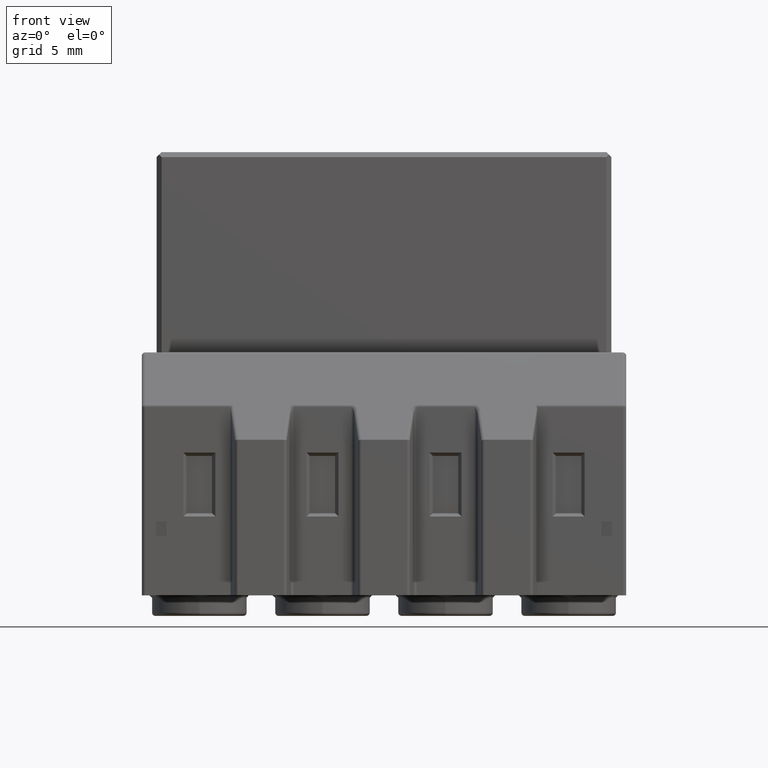
[diagram: clean part render]
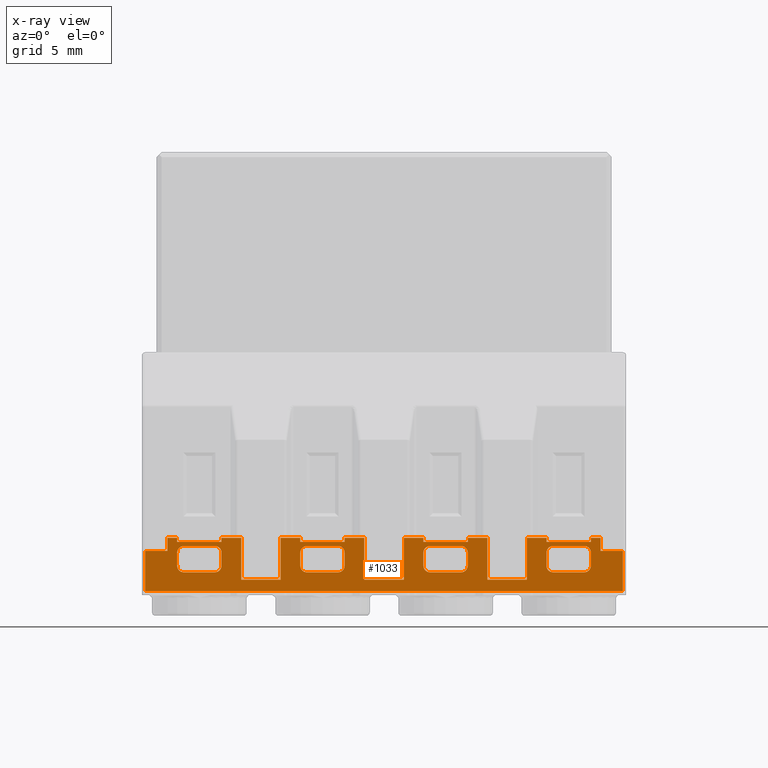
[diagram: x-ray — body ghosted, one internal face saturated and labeled with its STEP entity id]
A machine part, front view, then the same camera in x-ray: the body is ghosted and one INTERNAL B-rep face — a face not visible from any outside direction — is saturated and labeled: STEP entity #1033.
In plain terms, the highlighted planar face has unit normal (0, 1, 0).
Its self-contained STEP definition (entity closure, byte-faithful):
#1033=ADVANCED_FACE('',(#2206,#2207,#2208,#2209,#2210),#1711,.F.);
#1711=PLANE('',#12964);
#2206=FACE_BOUND('',#2252,.T.);
#2207=FACE_BOUND('',#2253,.T.);
#2208=FACE_BOUND('',#2254,.T.);
#2209=FACE_BOUND('',#2255,.T.);
#2210=FACE_BOUND('',#2256,.T.);
#2252=EDGE_LOOP('',(#5974,#5975,#5976,#5977,#5978,#5979,#5980,#5981));
#2253=EDGE_LOOP('',(#5982,#5983,#5984,#5985,#5986,#5987,#5988,#5989));
#2254=EDGE_LOOP('',(#5990,#5991,#5992,#5993,#5994,#5995,#5996,#5997));
#2255=EDGE_LOOP('',(#5998,#5999,#6000,#6001,#6002,#6003,#6004,#6005));
#2256=EDGE_LOOP('',(#6006,#6007,#6008,#6009,#6010,#6011,#6012,#6013,#6014,
#6015,#6016,#6017,#6018,#6019,#6020,#6021,#6022,#6023,#6024,#6025,#6026,
#6027,#6028,#6029,#6030,#6031,#6032,#6033,#6034,#6035,#6036,#6037,#6038,
#6039,#6040,#6041));
#2960=LINE('',#17395,#4467);
#2961=LINE('',#17399,#4468);
#2962=LINE('',#17403,#4469);
#2963=LINE('',#17407,#4470);
#2964=LINE('',#17411,#4471);
#2965=LINE('',#17415,#4472);
#2966=LINE('',#17419,#4473);
#2967=LINE('',#17423,#4474);
#2968=LINE('',#17427,#4475);
#2969=LINE('',#17431,#4476);
#2970=LINE('',#17435,#4477);
#2971=LINE('',#17439,#4478);
#2972=LINE('',#17443,#4479);
#2973=LINE('',#17447,#4480);
#2974=LINE('',#17451,#4481);
#2975=LINE('',#17455,#4482);
#2976=LINE('',#17456,#4483);
#2977=LINE('',#17459,#4484);
#2978=LINE('',#17461,#4485);
#2979=LINE('',#17463,#4486);
#2980=LINE('',#17465,#4487);
#2981=LINE('',#17467,#4488);
#2982=LINE('',#17469,#4489);
#2983=LINE('',#17471,#4490);
#2984=LINE('',#17473,#4491);
#2985=LINE('',#17475,#4492);
#2986=LINE('',#17477,#4493);
#2987=LINE('',#17479,#4494);
#2988=LINE('',#17481,#4495);
#2989=LINE('',#17483,#4496);
#2990=LINE('',#17485,#4497);
#2991=LINE('',#17487,#4498);
#2992=LINE('',#17489,#4499);
#2993=LINE('',#17491,#4500);
#2994=LINE('',#17493,#4501);
#2995=LINE('',#17495,#4502);
#2996=LINE('',#17497,#4503);
#2997=LINE('',#17499,#4504);
#2998=LINE('',#17501,#4505);
#2999=LINE('',#17503,#4506);
#3000=LINE('',#17505,#4507);
#3001=LINE('',#17507,#4508);
#3002=LINE('',#17509,#4509);
#3003=LINE('',#17511,#4510);
#3004=LINE('',#17513,#4511);
#3005=LINE('',#17515,#4512);
#3006=LINE('',#17517,#4513);
#3007=LINE('',#17519,#4514);
#3008=LINE('',#17521,#4515);
#3009=LINE('',#17523,#4516);
#3010=LINE('',#17525,#4517);
#3011=LINE('',#17527,#4518);
#4467=VECTOR('',#13930,1.);
#4468=VECTOR('',#13933,1.);
#4469=VECTOR('',#13936,1.);
#4470=VECTOR('',#13939,1.);
#4471=VECTOR('',#13942,1.);
#4472=VECTOR('',#13945,1.);
#4473=VECTOR('',#13948,1.);
#4474=VECTOR('',#13951,1.);
#4475=VECTOR('',#13954,1.);
#4476=VECTOR('',#13957,1.);
#4477=VECTOR('',#13960,1.);
#4478=VECTOR('',#13963,1.);
#4479=VECTOR('',#13966,1.);
#4480=VECTOR('',#13969,1.);
#4481=VECTOR('',#13972,1.);
#4482=VECTOR('',#13975,1.);
#4483=VECTOR('',#13976,1.);
#4484=VECTOR('',#13977,1.);
#4485=VECTOR('',#13978,1.);
#4486=VECTOR('',#13979,1.);
#4487=VECTOR('',#13980,1.);
#4488=VECTOR('',#13981,1.);
#4489=VECTOR('',#13982,1.);
#4490=VECTOR('',#13983,1.);
#4491=VECTOR('',#13984,1.);
#4492=VECTOR('',#13985,1.);
#4493=VECTOR('',#13986,1.);
#4494=VECTOR('',#13987,1.);
#4495=VECTOR('',#13988,1.);
#4496=VECTOR('',#13989,1.);
#4497=VECTOR('',#13990,1.);
#4498=VECTOR('',#13991,1.);
#4499=VECTOR('',#13992,1.);
#4500=VECTOR('',#13993,1.);
#4501=VECTOR('',#13994,1.);
#4502=VECTOR('',#13995,1.);
#4503=VECTOR('',#13996,1.);
#4504=VECTOR('',#13997,1.);
#4505=VECTOR('',#13998,1.);
#4506=VECTOR('',#13999,1.);
#4507=VECTOR('',#14000,1.);
#4508=VECTOR('',#14001,1.);
#4509=VECTOR('',#14002,1.);
#4510=VECTOR('',#14003,1.);
#4511=VECTOR('',#14004,1.);
#4512=VECTOR('',#14005,1.);
#4513=VECTOR('',#14006,1.);
#4514=VECTOR('',#14007,1.);
#4515=VECTOR('',#14008,1.);
#4516=VECTOR('',#14009,1.);
#4517=VECTOR('',#14010,1.);
#4518=VECTOR('',#14011,1.);
#5974=ORIENTED_EDGE('',*,*,#10849,.F.);
#5975=ORIENTED_EDGE('',*,*,#10850,.F.);
#5976=ORIENTED_EDGE('',*,*,#10851,.F.);
#5977=ORIENTED_EDGE('',*,*,#10852,.F.);
#5978=ORIENTED_EDGE('',*,*,#10853,.F.);
#5979=ORIENTED_EDGE('',*,*,#10854,.F.);
#5980=ORIENTED_EDGE('',*,*,#10855,.F.);
#5981=ORIENTED_EDGE('',*,*,#10856,.F.);
#5982=ORIENTED_EDGE('',*,*,#10857,.F.);
#5983=ORIENTED_EDGE('',*,*,#10858,.F.);
#5984=ORIENTED_EDGE('',*,*,#10859,.F.);
#5985=ORIENTED_EDGE('',*,*,#10860,.F.);
#5986=ORIENTED_EDGE('',*,*,#10861,.F.);
#5987=ORIENTED_EDGE('',*,*,#10862,.F.);
#5988=ORIENTED_EDGE('',*,*,#10863,.F.);
#5989=ORIENTED_EDGE('',*,*,#10864,.F.);
#5990=ORIENTED_EDGE('',*,*,#10865,.F.);
#5991=ORIENTED_EDGE('',*,*,#10866,.F.);
#5992=ORIENTED_EDGE('',*,*,#10867,.F.);
#5993=ORIENTED_EDGE('',*,*,#10868,.F.);
#5994=ORIENTED_EDGE('',*,*,#10869,.F.);
#5995=ORIENTED_EDGE('',*,*,#10870,.F.);
#5996=ORIENTED_EDGE('',*,*,#10871,.F.);
#5997=ORIENTED_EDGE('',*,*,#10872,.F.);
#5998=ORIENTED_EDGE('',*,*,#10873,.F.);
#5999=ORIENTED_EDGE('',*,*,#10874,.F.);
#6000=ORIENTED_EDGE('',*,*,#10875,.F.);
#6001=ORIENTED_EDGE('',*,*,#10876,.F.);
#6002=ORIENTED_EDGE('',*,*,#10877,.F.);
#6003=ORIENTED_EDGE('',*,*,#10878,.F.);
#6004=ORIENTED_EDGE('',*,*,#10879,.F.);
#6005=ORIENTED_EDGE('',*,*,#10880,.F.);
#6006=ORIENTED_EDGE('',*,*,#10881,.T.);
#6007=ORIENTED_EDGE('',*,*,#10882,.T.);
#6008=ORIENTED_EDGE('',*,*,#10883,.T.);
#6009=ORIENTED_EDGE('',*,*,#10884,.T.);
#6010=ORIENTED_EDGE('',*,*,#10885,.F.);
#6011=ORIENTED_EDGE('',*,*,#10886,.T.);
#6012=ORIENTED_EDGE('',*,*,#10887,.T.);
#6013=ORIENTED_EDGE('',*,*,#10888,.F.);
#6014=ORIENTED_EDGE('',*,*,#10889,.T.);
#6015=ORIENTED_EDGE('',*,*,#10890,.T.);
#6016=ORIENTED_EDGE('',*,*,#10891,.T.);
#6017=ORIENTED_EDGE('',*,*,#10892,.F.);
#6018=ORIENTED_EDGE('',*,*,#10893,.T.);
#6019=ORIENTED_EDGE('',*,*,#10894,.T.);
#6020=ORIENTED_EDGE('',*,*,#10895,.T.);
#6021=ORIENTED_EDGE('',*,*,#10896,.T.);
#6022=ORIENTED_EDGE('',*,*,#10897,.F.);
#6023=ORIENTED_EDGE('',*,*,#10898,.T.);
#6024=ORIENTED_EDGE('',*,*,#10899,.T.);
#6025=ORIENTED_EDGE('',*,*,#10900,.T.);
#6026=ORIENTED_EDGE('',*,*,#10901,.T.);
#6027=ORIENTED_EDGE('',*,*,#10902,.T.);
#6028=ORIENTED_EDGE('',*,*,#10903,.T.);
#6029=ORIENTED_EDGE('',*,*,#10904,.T.);
#6030=ORIENTED_EDGE('',*,*,#10905,.F.);
#6031=ORIENTED_EDGE('',*,*,#10906,.T.);
#6032=ORIENTED_EDGE('',*,*,#10907,.T.);
#6033=ORIENTED_EDGE('',*,*,#10908,.F.);
#6034=ORIENTED_EDGE('',*,*,#10909,.T.);
#6035=ORIENTED_EDGE('',*,*,#10910,.T.);
#6036=ORIENTED_EDGE('',*,*,#10911,.T.);
#6037=ORIENTED_EDGE('',*,*,#10912,.T.);
#6038=ORIENTED_EDGE('',*,*,#10913,.F.);
#6039=ORIENTED_EDGE('',*,*,#10914,.T.);
#6040=ORIENTED_EDGE('',*,*,#10915,.T.);
#6041=ORIENTED_EDGE('',*,*,#10916,.T.);
#9656=VERTEX_POINT('',#17393);
#9657=VERTEX_POINT('',#17394);
#9658=VERTEX_POINT('',#17396);
#9659=VERTEX_POINT('',#17398);
#9660=VERTEX_POINT('',#17400);
#9661=VERTEX_POINT('',#17402);
#9662=VERTEX_POINT('',#17404);
#9663=VERTEX_POINT('',#17406);
#9664=VERTEX_POINT('',#17409);
#9665=VERTEX_POINT('',#17410);
#9666=VERTEX_POINT('',#17412);
#9667=VERTEX_POINT('',#17414);
#9668=VERTEX_POINT('',#17416);
#9669=VERTEX_POINT('',#17418);
#9670=VERTEX_POINT('',#17420);
#9671=VERTEX_POINT('',#17422);
#9672=VERTEX_POINT('',#17425);
#9673=VERTEX_POINT('',#17426);
#9674=VERTEX_POINT('',#17428);
#9675=VERTEX_POINT('',#17430);
#9676=VERTEX_POINT('',#17432);
#9677=VERTEX_POINT('',#17434);
#9678=VERTEX_POINT('',#17436);
#9679=VERTEX_POINT('',#17438);
#9680=VERTEX_POINT('',#17441);
#9681=VERTEX_POINT('',#17442);
#9682=VERTEX_POINT('',#17444);
#9683=VERTEX_POINT('',#17446);
#9684=VERTEX_POINT('',#17448);
#9685=VERTEX_POINT('',#17450);
#9686=VERTEX_POINT('',#17452);
#9687=VERTEX_POINT('',#17454);
#9688=VERTEX_POINT('',#17457);
#9689=VERTEX_POINT('',#17458);
#9690=VERTEX_POINT('',#17460);
#9691=VERTEX_POINT('',#17462);
#9692=VERTEX_POINT('',#17464);
#9693=VERTEX_POINT('',#17466);
#9694=VERTEX_POINT('',#17468);
#9695=VERTEX_POINT('',#17470);
#9696=VERTEX_POINT('',#17472);
#9697=VERTEX_POINT('',#17474);
#9698=VERTEX_POINT('',#17476);
#9699=VERTEX_POINT('',#17478);
#9700=VERTEX_POINT('',#17480);
#9701=VERTEX_POINT('',#17482);
#9702=VERTEX_POINT('',#17484);
#9703=VERTEX_POINT('',#17486);
#9704=VERTEX_POINT('',#17488);
#9705=VERTEX_POINT('',#17490);
#9706=VERTEX_POINT('',#17492);
#9707=VERTEX_POINT('',#17494);
#9708=VERTEX_POINT('',#17496);
#9709=VERTEX_POINT('',#17498);
#9710=VERTEX_POINT('',#17500);
#9711=VERTEX_POINT('',#17502);
#9712=VERTEX_POINT('',#17504);
#9713=VERTEX_POINT('',#17506);
#9714=VERTEX_POINT('',#17508);
#9715=VERTEX_POINT('',#17510);
#9716=VERTEX_POINT('',#17512);
#9717=VERTEX_POINT('',#17514);
#9718=VERTEX_POINT('',#17516);
#9719=VERTEX_POINT('',#17518);
#9720=VERTEX_POINT('',#17520);
#9721=VERTEX_POINT('',#17522);
#9722=VERTEX_POINT('',#17524);
#9723=VERTEX_POINT('',#17526);
#10849=EDGE_CURVE('',#9656,#9657,#12690,.T.);
#10850=EDGE_CURVE('',#9658,#9656,#2960,.T.);
#10851=EDGE_CURVE('',#9659,#9658,#12691,.T.);
#10852=EDGE_CURVE('',#9660,#9659,#2961,.T.);
#10853=EDGE_CURVE('',#9661,#9660,#12692,.T.);
#10854=EDGE_CURVE('',#9662,#9661,#2962,.T.);
#10855=EDGE_CURVE('',#9663,#9662,#12693,.T.);
#10856=EDGE_CURVE('',#9657,#9663,#2963,.T.);
#10857=EDGE_CURVE('',#9664,#9665,#12694,.T.);
#10858=EDGE_CURVE('',#9666,#9664,#2964,.T.);
#10859=EDGE_CURVE('',#9667,#9666,#12695,.T.);
#10860=EDGE_CURVE('',#9668,#9667,#2965,.T.);
#10861=EDGE_CURVE('',#9669,#9668,#12696,.T.);
#10862=EDGE_CURVE('',#9670,#9669,#2966,.T.);
#10863=EDGE_CURVE('',#9671,#9670,#12697,.T.);
#10864=EDGE_CURVE('',#9665,#9671,#2967,.T.);
#10865=EDGE_CURVE('',#9672,#9673,#12698,.T.);
#10866=EDGE_CURVE('',#9674,#9672,#2968,.T.);
#10867=EDGE_CURVE('',#9675,#9674,#12699,.T.);
#10868=EDGE_CURVE('',#9676,#9675,#2969,.T.);
#10869=EDGE_CURVE('',#9677,#9676,#12700,.T.);
#10870=EDGE_CURVE('',#9678,#9677,#2970,.T.);
#10871=EDGE_CURVE('',#9679,#9678,#12701,.T.);
#10872=EDGE_CURVE('',#9673,#9679,#2971,.T.);
#10873=EDGE_CURVE('',#9680,#9681,#12702,.T.);
#10874=EDGE_CURVE('',#9682,#9680,#2972,.T.);
#10875=EDGE_CURVE('',#9683,#9682,#12703,.T.);
#10876=EDGE_CURVE('',#9684,#9683,#2973,.T.);
#10877=EDGE_CURVE('',#9685,#9684,#12704,.T.);
#10878=EDGE_CURVE('',#9686,#9685,#2974,.T.);
#10879=EDGE_CURVE('',#9687,#9686,#12705,.T.);
#10880=EDGE_CURVE('',#9681,#9687,#2975,.T.);
#10881=EDGE_CURVE('',#9688,#9689,#2976,.T.);
#10882=EDGE_CURVE('',#9689,#9690,#2977,.T.);
#10883=EDGE_CURVE('',#9690,#9691,#2978,.T.);
#10884=EDGE_CURVE('',#9691,#9692,#2979,.T.);
#10885=EDGE_CURVE('',#9693,#9692,#2980,.T.);
#10886=EDGE_CURVE('',#9693,#9694,#2981,.T.);
#10887=EDGE_CURVE('',#9694,#9695,#2982,.T.);
#10888=EDGE_CURVE('',#9696,#9695,#2983,.T.);
#10889=EDGE_CURVE('',#9696,#9697,#2984,.T.);
#10890=EDGE_CURVE('',#9697,#9698,#2985,.T.);
#10891=EDGE_CURVE('',#9698,#9699,#2986,.T.);
#10892=EDGE_CURVE('',#9700,#9699,#2987,.T.);
#10893=EDGE_CURVE('',#9700,#9701,#2988,.T.);
#10894=EDGE_CURVE('',#9701,#9702,#2989,.T.);
#10895=EDGE_CURVE('',#9702,#9703,#2990,.T.);
#10896=EDGE_CURVE('',#9703,#9704,#2991,.T.);
#10897=EDGE_CURVE('',#9705,#9704,#2992,.T.);
#10898=EDGE_CURVE('',#9705,#9706,#2993,.T.);
#10899=EDGE_CURVE('',#9706,#9707,#2994,.T.);
#10900=EDGE_CURVE('',#9707,#9708,#2995,.T.);
#10901=EDGE_CURVE('',#9708,#9709,#2996,.T.);
#10902=EDGE_CURVE('',#9709,#9710,#2997,.T.);
#10903=EDGE_CURVE('',#9710,#9711,#2998,.T.);
#10904=EDGE_CURVE('',#9711,#9712,#2999,.T.);
#10905=EDGE_CURVE('',#9713,#9712,#3000,.T.);
#10906=EDGE_CURVE('',#9713,#9714,#3001,.T.);
#10907=EDGE_CURVE('',#9714,#9715,#3002,.T.);
#10908=EDGE_CURVE('',#9716,#9715,#3003,.T.);
#10909=EDGE_CURVE('',#9716,#9717,#3004,.T.);
#10910=EDGE_CURVE('',#9717,#9718,#3005,.T.);
#10911=EDGE_CURVE('',#9718,#9719,#3006,.T.);
#10912=EDGE_CURVE('',#9719,#9720,#3007,.T.);
#10913=EDGE_CURVE('',#9721,#9720,#3008,.T.);
#10914=EDGE_CURVE('',#9721,#9722,#3009,.T.);
#10915=EDGE_CURVE('',#9722,#9723,#3010,.T.);
#10916=EDGE_CURVE('',#9723,#9688,#3011,.T.);
#12690=CIRCLE('',#12948,0.4);
#12691=CIRCLE('',#12949,0.4);
#12692=CIRCLE('',#12950,0.4);
#12693=CIRCLE('',#12951,0.4);
#12694=CIRCLE('',#12952,0.4);
#12695=CIRCLE('',#12953,0.4);
#12696=CIRCLE('',#12954,0.4);
#12697=CIRCLE('',#12955,0.4);
#12698=CIRCLE('',#12956,0.4);
#12699=CIRCLE('',#12957,0.4);
#12700=CIRCLE('',#12958,0.4);
#12701=CIRCLE('',#12959,0.4);
#12702=CIRCLE('',#12960,0.4);
#12703=CIRCLE('',#12961,0.4);
#12704=CIRCLE('',#12962,0.4);
#12705=CIRCLE('',#12963,0.4);
#12948=AXIS2_PLACEMENT_3D('',#17392,#13928,#13929);
#12949=AXIS2_PLACEMENT_3D('',#17397,#13931,#13932);
#12950=AXIS2_PLACEMENT_3D('',#17401,#13934,#13935);
#12951=AXIS2_PLACEMENT_3D('',#17405,#13937,#13938);
#12952=AXIS2_PLACEMENT_3D('',#17408,#13940,#13941);
#12953=AXIS2_PLACEMENT_3D('',#17413,#13943,#13944);
#12954=AXIS2_PLACEMENT_3D('',#17417,#13946,#13947);
#12955=AXIS2_PLACEMENT_3D('',#17421,#13949,#13950);
#12956=AXIS2_PLACEMENT_3D('',#17424,#13952,#13953);
#12957=AXIS2_PLACEMENT_3D('',#17429,#13955,#13956);
#12958=AXIS2_PLACEMENT_3D('',#17433,#13958,#13959);
#12959=AXIS2_PLACEMENT_3D('',#17437,#13961,#13962);
#12960=AXIS2_PLACEMENT_3D('',#17440,#13964,#13965);
#12961=AXIS2_PLACEMENT_3D('',#17445,#13967,#13968);
#12962=AXIS2_PLACEMENT_3D('',#17449,#13970,#13971);
#12963=AXIS2_PLACEMENT_3D('',#17453,#13973,#13974);
#12964=AXIS2_PLACEMENT_3D('',#17528,#14012,#14013);
#13928=DIRECTION('',(0.,-1.,0.));
#13929=DIRECTION('',(1.,0.,0.));
#13930=DIRECTION('',(-8.744116541102E-012,0.,1.));
#13931=DIRECTION('',(0.,-1.,0.));
#13932=DIRECTION('',(0.,0.,-1.));
#13933=DIRECTION('',(1.,0.,3.68173328067E-012));
#13934=DIRECTION('',(0.,-1.,0.));
#13935=DIRECTION('',(-1.,0.,0.));
#13936=DIRECTION('',(8.746336987151E-012,0.,-1.));
#13937=DIRECTION('',(0.,-1.,0.));
#13938=DIRECTION('',(0.,0.,1.));
#13939=DIRECTION('',(-1.,0.,-3.685472979279E-012));
#13940=DIRECTION('',(0.,-1.,0.));
#13941=DIRECTION('',(1.,0.,0.));
#13942=DIRECTION('',(-8.7485574332E-012,0.,1.));
#13943=DIRECTION('',(0.,-1.,0.));
#13944=DIRECTION('',(3.90312782094782E-014,0.,-1.));
#13945=DIRECTION('',(1.,0.,3.679863431366E-012));
#13946=DIRECTION('',(0.,-1.,0.));
#13947=DIRECTION('',(-0.999999999999998,0.,0.));
#13948=DIRECTION('',(8.7485574332E-012,0.,-1.));
#13949=DIRECTION('',(0.,-1.,0.));
#13950=DIRECTION('',(2.60208521396521E-014,0.,1.));
#13951=DIRECTION('',(-1.,0.,-3.68173328067E-012));
#13952=DIRECTION('',(0.,-1.,0.));
#13953=DIRECTION('',(0.999999999999998,0.,0.));
#13954=DIRECTION('',(-8.7485574332E-012,0.,1.));
#13955=DIRECTION('',(0.,-1.,0.));
#13956=DIRECTION('',(0.,0.,-1.));
#13957=DIRECTION('',(1.,0.,3.679863431366E-012));
#13958=DIRECTION('',(0.,-1.,0.));
#13959=DIRECTION('',(-1.,0.,0.));
#13960=DIRECTION('',(8.744116541102E-012,0.,-1.));
#13961=DIRECTION('',(0.,-1.,0.));
#13962=DIRECTION('',(0.,0.,1.));
#13963=DIRECTION('',(-1.,0.,-3.68173328067E-012));
#13964=DIRECTION('',(0.,-1.,0.));
#13965=DIRECTION('',(1.,0.,0.));
#13966=DIRECTION('',(-8.744116541102E-012,0.,1.));
#13967=DIRECTION('',(0.,-1.,0.));
#13968=DIRECTION('',(3.46944695195361E-014,0.,-1.));
#13969=DIRECTION('',(1.,0.,3.679863431366E-012));
#13970=DIRECTION('',(0.,-1.,0.));
#13971=DIRECTION('',(-1.,0.,0.));
#13972=DIRECTION('',(8.744116541102E-012,0.,-1.));
#13973=DIRECTION('',(0.,-1.,0.));
#13974=DIRECTION('',(0.,0.,1.));
#13975=DIRECTION('',(-1.,0.,-3.679863431366E-012));
#13976=DIRECTION('',(0.,0.,1.));
#13977=DIRECTION('',(-1.,0.,0.));
#13978=DIRECTION('',(0.,0.,-1.));
#13979=DIRECTION('',(-1.,0.,0.));
#13980=DIRECTION('',(0.,0.,-1.));
#13981=DIRECTION('',(-1.,0.,0.));
#13982=DIRECTION('',(0.,0.,-1.));
#13983=DIRECTION('',(1.,0.,0.));
#13984=DIRECTION('',(0.,0.,-1.));
#13985=DIRECTION('',(1.,0.,0.));
#13986=DIRECTION('',(0.,0.,1.));
#13987=DIRECTION('',(1.,0.,0.));
#13988=DIRECTION('',(0.,0.,1.));
#13989=DIRECTION('',(-1.,0.,0.));
#13990=DIRECTION('',(0.,0.,-1.));
#13991=DIRECTION('',(-1.,0.,0.));
#13992=DIRECTION('',(0.,0.,-1.));
#13993=DIRECTION('',(-1.,0.,0.));
#13994=DIRECTION('',(0.,0.,-1.));
#13995=DIRECTION('',(-1.,0.,0.));
#13996=DIRECTION('',(0.,0.,1.));
#13997=DIRECTION('',(-1.,0.,0.));
#13998=DIRECTION('',(0.,0.,-1.));
#13999=DIRECTION('',(-1.,0.,0.));
#14000=DIRECTION('',(0.,0.,-1.));
#14001=DIRECTION('',(-1.,0.,0.));
#14002=DIRECTION('',(0.,0.,-1.));
#14003=DIRECTION('',(1.,0.,0.));
#14004=DIRECTION('',(0.,0.,1.));
#14005=DIRECTION('',(-1.,0.,0.));
#14006=DIRECTION('',(0.,0.,-1.));
#14007=DIRECTION('',(-1.,0.,0.));
#14008=DIRECTION('',(0.,0.,-1.));
#14009=DIRECTION('',(-1.,0.,0.));
#14010=DIRECTION('',(0.,0.,-1.));
#14011=DIRECTION('',(-1.,0.,0.));
#14012=DIRECTION('',(0.,1.,0.));
#14013=DIRECTION('',(0.,0.,1.));
#17392=CARTESIAN_POINT('',(0.95,-6.12,-24.400000000001));
#17393=CARTESIAN_POINT('',(1.349999999992,-6.12,-24.399999999941));
#17394=CARTESIAN_POINT('',(0.95,-6.12,-24.000000000001));
#17395=CARTESIAN_POINT('',(1.349999999999,-6.12,-25.200000000011));
#17396=CARTESIAN_POINT('',(1.35,-6.12,-25.200000000001));
#17397=CARTESIAN_POINT('',(0.95,-6.12,-25.200000000001));
#17398=CARTESIAN_POINT('',(0.95,-6.12,-25.600000000001));
#17399=CARTESIAN_POINT('',(-0.950000000013001,-6.12,-25.600000000001));
#17400=CARTESIAN_POINT('',(-0.95,-6.12,-25.600000000001));
#17401=CARTESIAN_POINT('',(-0.95,-6.12,-25.200000000001));
#17402=CARTESIAN_POINT('',(-1.349999999992,-6.12,-25.200000000061));
#17403=CARTESIAN_POINT('',(-1.349999999999,-6.12,-24.399999999991));
#17404=CARTESIAN_POINT('',(-1.35,-6.12,-24.400000000001));
#17405=CARTESIAN_POINT('',(-0.95,-6.12,-24.400000000001));
#17406=CARTESIAN_POINT('',(-0.950000000064,-6.12,-24.000000000011));
#17407=CARTESIAN_POINT('',(0.950000000012999,-6.12,-24.000000000001));
#17408=CARTESIAN_POINT('',(-6.55,-6.12,-24.400000000001));
#17409=CARTESIAN_POINT('',(-6.15000000001,-6.12,-24.399999999941));
#17410=CARTESIAN_POINT('',(-6.55,-6.12,-24.000000000001));
#17411=CARTESIAN_POINT('',(-6.15,-6.12,-25.200000000011));
#17412=CARTESIAN_POINT('',(-6.15,-6.12,-25.200000000001));
#17413=CARTESIAN_POINT('',(-6.55,-6.12,-25.200000000001));
#17414=CARTESIAN_POINT('',(-6.55,-6.12,-25.600000000001));
#17415=CARTESIAN_POINT('',(-8.45000000001,-6.12,-25.600000000001));
#17416=CARTESIAN_POINT('',(-8.45,-6.12,-25.600000000001));
#17417=CARTESIAN_POINT('',(-8.45,-6.12,-25.200000000001));
#17418=CARTESIAN_POINT('',(-8.84999999999,-6.12,-25.200000000061));
#17419=CARTESIAN_POINT('',(-8.85,-6.12,-24.399999999991));
#17420=CARTESIAN_POINT('',(-8.85,-6.12,-24.400000000001));
#17421=CARTESIAN_POINT('',(-8.45,-6.12,-24.400000000001));
#17422=CARTESIAN_POINT('',(-8.45000000006,-6.12,-24.000000000011));
#17423=CARTESIAN_POINT('',(-6.54999999999,-6.12,-24.000000000001));
#17424=CARTESIAN_POINT('',(-14.05,-6.12,-24.400000000001));
#17425=CARTESIAN_POINT('',(-13.65000000001,-6.12,-24.399999999941));
#17426=CARTESIAN_POINT('',(-14.05,-6.12,-24.000000000001));
#17427=CARTESIAN_POINT('',(-13.65,-6.12,-25.200000000011));
#17428=CARTESIAN_POINT('',(-13.65,-6.12,-25.200000000001));
#17429=CARTESIAN_POINT('',(-14.05,-6.12,-25.200000000001));
#17430=CARTESIAN_POINT('',(-14.05,-6.12,-25.600000000001));
#17431=CARTESIAN_POINT('',(-15.95000000001,-6.12,-25.600000000001));
#17432=CARTESIAN_POINT('',(-15.95,-6.12,-25.600000000001));
#17433=CARTESIAN_POINT('',(-15.95,-6.12,-25.200000000001));
#17434=CARTESIAN_POINT('',(-16.34999999999,-6.12,-25.200000000061));
#17435=CARTESIAN_POINT('',(-16.35,-6.12,-24.399999999991));
#17436=CARTESIAN_POINT('',(-16.35,-6.12,-24.400000000001));
#17437=CARTESIAN_POINT('',(-15.95,-6.12,-24.400000000001));
#17438=CARTESIAN_POINT('',(-15.95000000006,-6.12,-24.000000000011));
#17439=CARTESIAN_POINT('',(-14.04999999999,-6.12,-24.000000000001));
#17440=CARTESIAN_POINT('',(-21.55,-6.12,-24.400000000001));
#17441=CARTESIAN_POINT('',(-21.15000000001,-6.12,-24.399999999941));
#17442=CARTESIAN_POINT('',(-21.55,-6.12,-24.000000000001));
#17443=CARTESIAN_POINT('',(-21.15,-6.12,-25.200000000011));
#17444=CARTESIAN_POINT('',(-21.15,-6.12,-25.200000000001));
#17445=CARTESIAN_POINT('',(-21.55,-6.12,-25.200000000001));
#17446=CARTESIAN_POINT('',(-21.55,-6.12,-25.600000000001));
#17447=CARTESIAN_POINT('',(-23.45000000001,-6.12,-25.600000000001));
#17448=CARTESIAN_POINT('',(-23.45,-6.12,-25.600000000001));
#17449=CARTESIAN_POINT('',(-23.45,-6.12,-25.200000000001));
#17450=CARTESIAN_POINT('',(-23.84999999999,-6.12,-25.200000000061));
#17451=CARTESIAN_POINT('',(-23.85,-6.12,-24.399999999991));
#17452=CARTESIAN_POINT('',(-23.85,-6.12,-24.400000000001));
#17453=CARTESIAN_POINT('',(-23.45,-6.12,-24.400000000001));
#17454=CARTESIAN_POINT('',(-23.45000000006,-6.12,-24.000000000011));
#17455=CARTESIAN_POINT('',(-21.54999999999,-6.12,-24.000000000001));
#17456=CARTESIAN_POINT('',(-19.95,-6.12,-26.050000000001));
#17457=CARTESIAN_POINT('',(-19.95,-6.12,-26.050000000001));
#17458=CARTESIAN_POINT('',(-19.95,-6.12,-23.5));
#17459=CARTESIAN_POINT('',(-25.3,-6.12,-23.5));
#17460=CARTESIAN_POINT('',(-21.15,-6.12,-23.5));
#17461=CARTESIAN_POINT('',(-21.15,-6.12,-22.550000000001));
#17462=CARTESIAN_POINT('',(-21.15,-6.12,-23.750000000001));
#17463=CARTESIAN_POINT('',(-21.15,-6.12,-23.750000000001));
#17464=CARTESIAN_POINT('',(-23.85,-6.12,-23.750000000001));
#17465=CARTESIAN_POINT('',(-23.85,-6.12,-22.550000000001));
#17466=CARTESIAN_POINT('',(-23.85,-6.12,-23.5));
#17467=CARTESIAN_POINT('',(-25.3,-6.12,-23.5));
#17468=CARTESIAN_POINT('',(-24.45,-6.12,-23.5));
#17469=CARTESIAN_POINT('',(-24.45,-6.12,-23.150000000001));
#17470=CARTESIAN_POINT('',(-24.45,-6.12,-24.300000000001));
#17471=CARTESIAN_POINT('',(-25.8,-6.12,-24.300000000001));
#17472=CARTESIAN_POINT('',(-25.8,-6.12,-24.300000000001));
#17473=CARTESIAN_POINT('',(-25.8,-6.12,-24.300000000001));
#17474=CARTESIAN_POINT('',(-25.8,-6.12,-26.750000000001));
#17475=CARTESIAN_POINT('',(-25.8,-6.12,-26.750000000001));
#17476=CARTESIAN_POINT('',(3.3,-6.12,-26.750000000001));
#17477=CARTESIAN_POINT('',(3.3,-6.12,-26.750000000001));
#17478=CARTESIAN_POINT('',(3.3,-6.12,-24.300000000001));
#17479=CARTESIAN_POINT('',(1.95,-6.12,-24.300000000001));
#17480=CARTESIAN_POINT('',(1.95,-6.12,-24.300000000001));
#17481=CARTESIAN_POINT('',(1.95,-6.12,-24.300000000001));
#17482=CARTESIAN_POINT('',(1.95,-6.12,-23.5));
#17483=CARTESIAN_POINT('',(2.,-6.12,-23.5));
#17484=CARTESIAN_POINT('',(1.35,-6.12,-23.5));
#17485=CARTESIAN_POINT('',(1.35,-6.12,-22.550000000001));
#17486=CARTESIAN_POINT('',(1.35,-6.12,-23.750000000001));
#17487=CARTESIAN_POINT('',(1.35,-6.12,-23.750000000001));
#17488=CARTESIAN_POINT('',(-1.35,-6.12,-23.750000000001));
#17489=CARTESIAN_POINT('',(-1.35,-6.12,-22.550000000001));
#17490=CARTESIAN_POINT('',(-1.35,-6.12,-23.5));
#17491=CARTESIAN_POINT('',(2.,-6.12,-23.5));
#17492=CARTESIAN_POINT('',(-2.55,-6.12,-23.5));
#17493=CARTESIAN_POINT('',(-2.55,-6.12,-22.550000000001));
#17494=CARTESIAN_POINT('',(-2.55,-6.12,-26.050000000001));
#17495=CARTESIAN_POINT('',(-2.55,-6.12,-26.050000000001));
#17496=CARTESIAN_POINT('',(-4.95,-6.12,-26.050000000001));
#17497=CARTESIAN_POINT('',(-4.95,-6.12,-26.050000000001));
#17498=CARTESIAN_POINT('',(-4.95,-6.12,-23.5));
#17499=CARTESIAN_POINT('',(-5.500000000001,-6.12,-23.5));
#17500=CARTESIAN_POINT('',(-6.15,-6.12,-23.5));
#17501=CARTESIAN_POINT('',(-6.15,-6.12,-22.550000000001));
#17502=CARTESIAN_POINT('',(-6.15,-6.12,-23.750000000001));
#17503=CARTESIAN_POINT('',(-6.15,-6.12,-23.750000000001));
#17504=CARTESIAN_POINT('',(-8.85,-6.12,-23.750000000001));
#17505=CARTESIAN_POINT('',(-8.85,-6.12,-22.550000000001));
#17506=CARTESIAN_POINT('',(-8.85,-6.12,-23.5));
#17507=CARTESIAN_POINT('',(-5.500000000001,-6.12,-23.5));
#17508=CARTESIAN_POINT('',(-10.05,-6.12,-23.5));
#17509=CARTESIAN_POINT('',(-10.05,-6.12,-22.550000000001));
#17510=CARTESIAN_POINT('',(-10.05,-6.12,-26.050000000001));
#17511=CARTESIAN_POINT('',(-12.45,-6.12,-26.050000000001));
#17512=CARTESIAN_POINT('',(-12.45,-6.12,-26.050000000001));
#17513=CARTESIAN_POINT('',(-12.45,-6.12,-26.050000000001));
#17514=CARTESIAN_POINT('',(-12.45,-6.12,-23.5));
#17515=CARTESIAN_POINT('',(-13.,-6.12,-23.5));
#17516=CARTESIAN_POINT('',(-13.65,-6.12,-23.5));
#17517=CARTESIAN_POINT('',(-13.65,-6.12,-22.550000000001));
#17518=CARTESIAN_POINT('',(-13.65,-6.12,-23.750000000001));
#17519=CARTESIAN_POINT('',(-13.65,-6.12,-23.750000000001));
#17520=CARTESIAN_POINT('',(-16.35,-6.12,-23.750000000001));
#17521=CARTESIAN_POINT('',(-16.35,-6.12,-22.550000000001));
#17522=CARTESIAN_POINT('',(-16.35,-6.12,-23.5));
#17523=CARTESIAN_POINT('',(-13.,-6.12,-23.5));
#17524=CARTESIAN_POINT('',(-17.55,-6.12,-23.5));
#17525=CARTESIAN_POINT('',(-17.55,-6.12,-22.550000000001));
#17526=CARTESIAN_POINT('',(-17.55,-6.12,-26.050000000001));
#17527=CARTESIAN_POINT('',(-17.55,-6.12,-26.050000000001));
#17528=CARTESIAN_POINT('',(-33.5,-6.12,-24.150000000001));